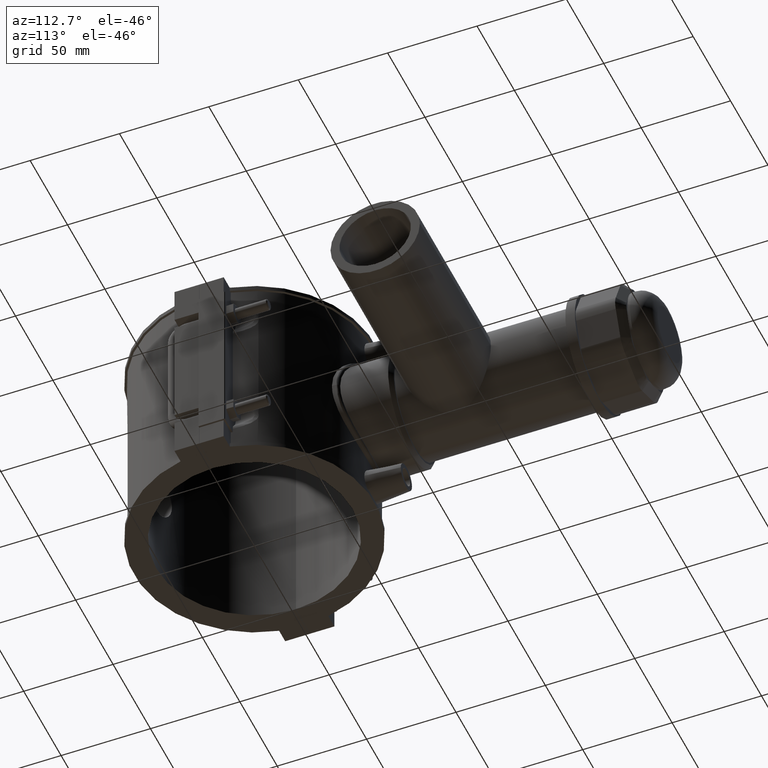
[diagram: clean part render]
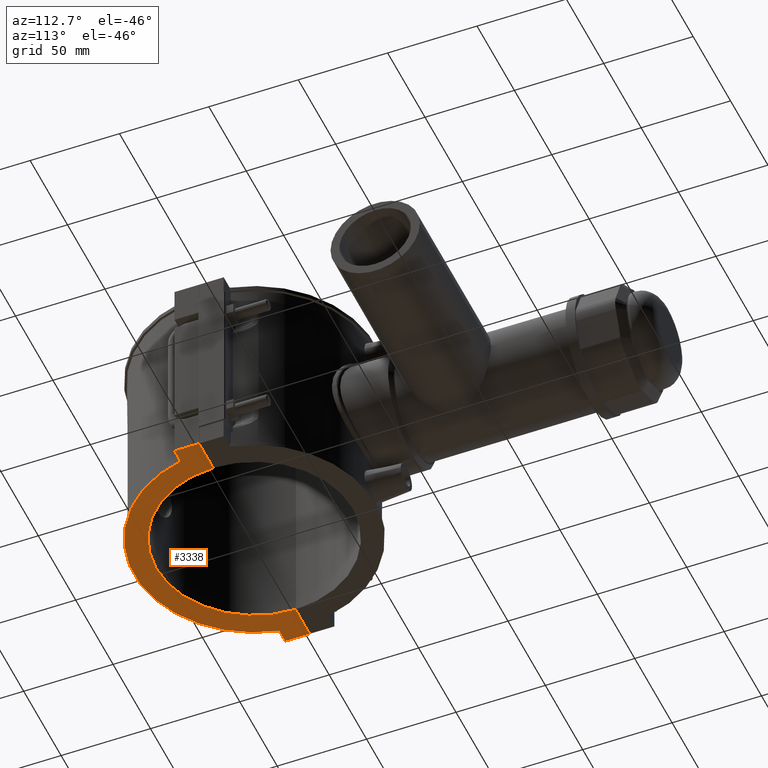
[diagram: same view with one face highlighted and labeled with its STEP entity id]
A machine part, auxiliary view. The second image highlights one B-rep face of the part: STEP entity #3338.
In plain terms, the highlighted planar face has unit normal (0, 0, 1).
Its self-contained STEP definition (entity closure, byte-faithful):
#125=LINE('',#5548,#412);
#144=LINE('',#5734,#431);
#270=LINE('',#6454,#557);
#311=LINE('',#6744,#598);
#316=LINE('',#6753,#603);
#319=LINE('',#6763,#606);
#412=VECTOR('',#3996,8.09916616612503);
#431=VECTOR('',#4049,8.09916616612502);
#557=VECTOR('',#4383,13.7);
#598=VECTOR('',#4520,19.0000227272774);
#603=VECTOR('',#4529,13.7);
#606=VECTOR('',#4542,19.0000227272775);
#958=FACE_OUTER_BOUND('',#1205,.T.);
#1205=EDGE_LOOP('',(#2961,#2962,#2963,#2964,#2965,#2966,#2967,#2968));
#1265=CIRCLE('',#3466,67.32);
#1330=CIRCLE('',#3647,55.);
#1424=VERTEX_POINT('',#5477);
#1425=VERTEX_POINT('',#5478);
#1445=VERTEX_POINT('',#5546);
#1474=VERTEX_POINT('',#5733);
#1597=VERTEX_POINT('',#6452);
#1635=VERTEX_POINT('',#6741);
#1636=VERTEX_POINT('',#6743);
#1639=VERTEX_POINT('',#6757);
#1776=EDGE_CURVE('',#1424,#1425,#1265,.T.);
#1800=EDGE_CURVE('',#1424,#1445,#125,.T.);
#1835=EDGE_CURVE('',#1474,#1425,#144,.T.);
#2016=EDGE_CURVE('',#1445,#1597,#270,.T.);
#2082=EDGE_CURVE('',#1636,#1635,#311,.T.);
#2087=EDGE_CURVE('',#1635,#1474,#316,.T.);
#2089=EDGE_CURVE('',#1639,#1636,#1330,.T.);
#2092=EDGE_CURVE('',#1597,#1639,#319,.T.);
#2961=ORIENTED_EDGE('',*,*,#2082,.T.);
#2962=ORIENTED_EDGE('',*,*,#2087,.T.);
#2963=ORIENTED_EDGE('',*,*,#1835,.T.);
#2964=ORIENTED_EDGE('',*,*,#1776,.F.);
#2965=ORIENTED_EDGE('',*,*,#1800,.T.);
#2966=ORIENTED_EDGE('',*,*,#2016,.T.);
#2967=ORIENTED_EDGE('',*,*,#2092,.T.);
#2968=ORIENTED_EDGE('',*,*,#2089,.T.);
#3147=PLANE('',#3649);
#3338=ADVANCED_FACE('',(#958),#3147,.F.);
#3466=AXIS2_PLACEMENT_3D('',#5479,#3963,#3964);
#3647=AXIS2_PLACEMENT_3D('',#6758,#4535,#4536);
#3649=AXIS2_PLACEMENT_3D('',#6762,#4540,#4541);
#3963=DIRECTION('center_axis',(0.,0.,1.));
#3964=DIRECTION('ref_axis',(-0.97891910032494,-0.204248366013072,0.));
#3996=DIRECTION('',(-1.,0.,0.));
#4049=DIRECTION('',(-1.,0.,0.));
#4383=DIRECTION('',(0.,1.,0.));
#4520=DIRECTION('',(1.,5.27449705533489E-17,0.));
#4529=DIRECTION('',(0.,-1.,0.));
#4535=DIRECTION('center_axis',(0.,0.,1.));
#4536=DIRECTION('ref_axis',(-1.,0.,0.));
#4540=DIRECTION('center_axis',(0.,0.,1.));
#4541=DIRECTION('ref_axis',(1.,0.,0.));
#4542=DIRECTION('',(1.,5.27449705533489E-17,0.));
#5477=CARTESIAN_POINT('',(-65.900833833875,-13.75,-59.));
#5478=CARTESIAN_POINT('',(65.900833833875,-13.75,-59.));
#5479=CARTESIAN_POINT('Origin',(0.,0.,-59.));
#5546=CARTESIAN_POINT('',(-74.,-13.75,-59.));
#5548=CARTESIAN_POINT('',(-74.,-13.75,-59.));
#5733=CARTESIAN_POINT('',(74.,-13.75,-59.));
#5734=CARTESIAN_POINT('',(64.5518202686803,-13.75,-59.));
#6452=CARTESIAN_POINT('',(-74.,-0.0500000000000078,-59.));
#6454=CARTESIAN_POINT('',(-74.,13.75,-59.));
#6741=CARTESIAN_POINT('',(74.,-0.05,-59.));
#6743=CARTESIAN_POINT('',(54.9999772727226,-0.050000000000001,-59.));
#6744=CARTESIAN_POINT('',(-72.0235519553924,-0.0500000000000077,-59.));
#6753=CARTESIAN_POINT('',(74.,-13.75,-59.));
#6757=CARTESIAN_POINT('',(-54.9999772727226,-0.0500000000000068,-59.));
#6758=CARTESIAN_POINT('Origin',(0.,0.,-59.));
#6762=CARTESIAN_POINT('Origin',(-70.0471039107848,-1.214036024795E-16,-59.));
#6763=CARTESIAN_POINT('',(-72.0235519553924,-0.0500000000000077,-59.));